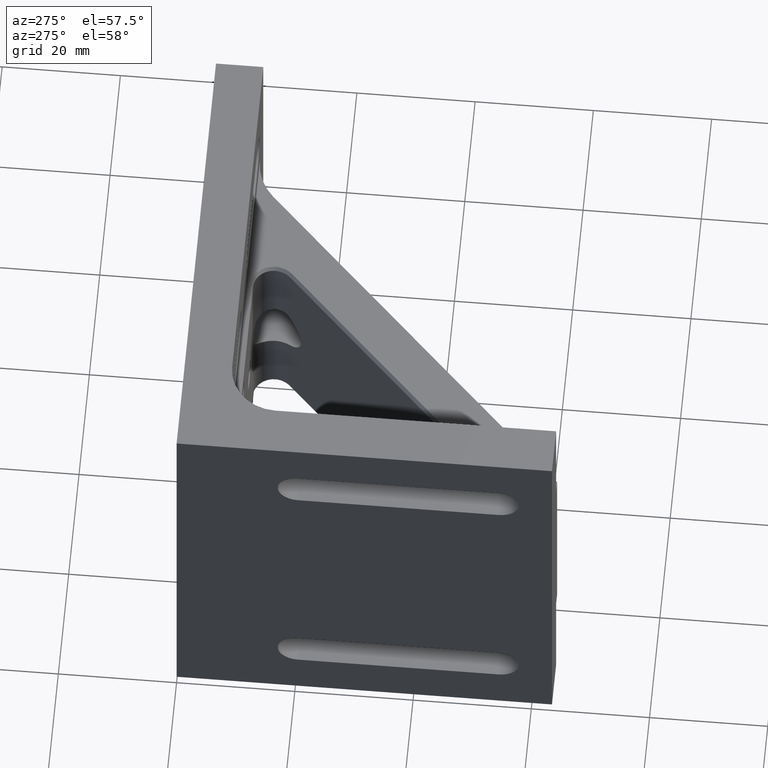
[diagram: clean part render]
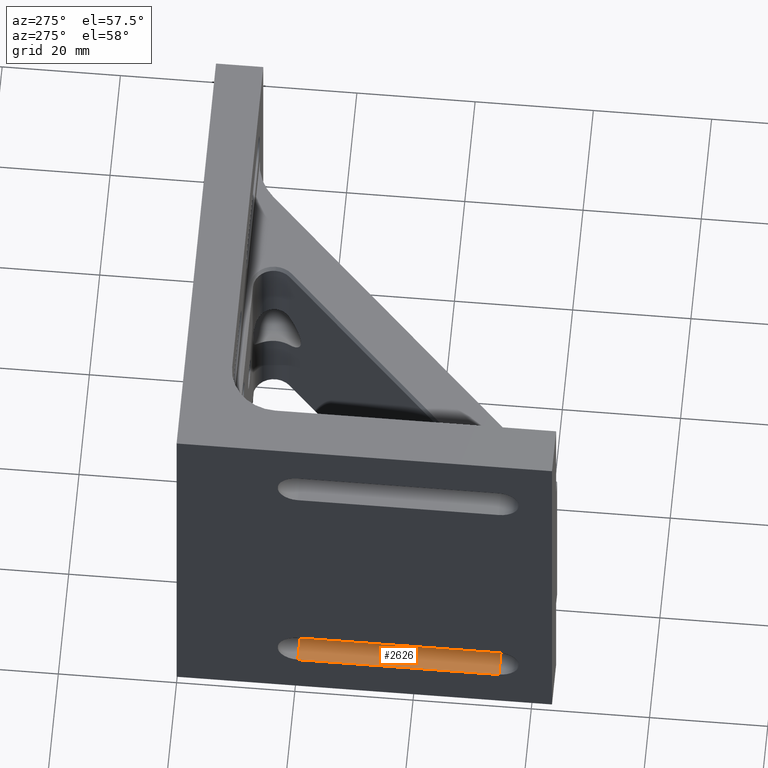
[diagram: same view with one face highlighted and labeled with its STEP entity id]
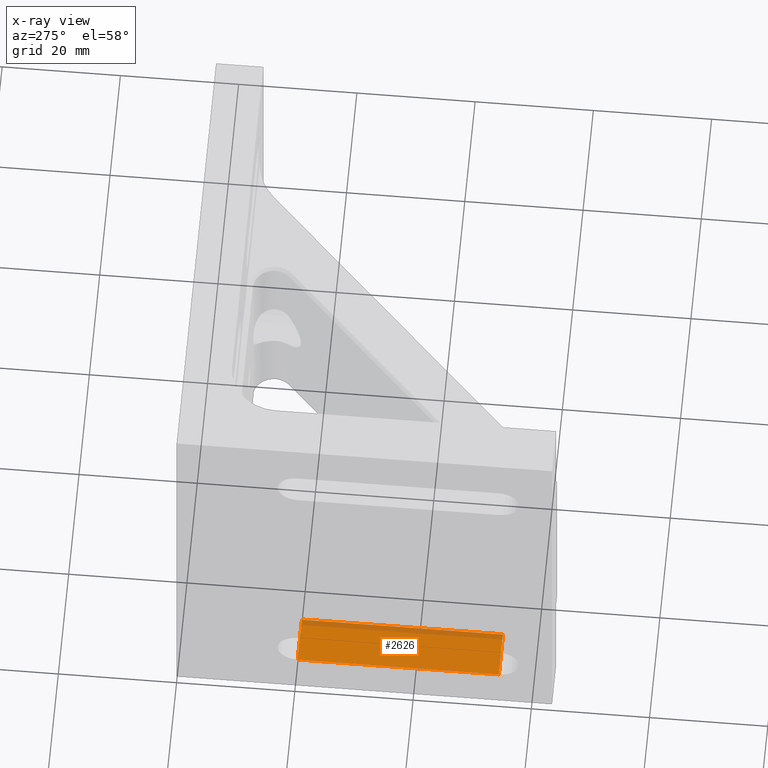
[diagram: x-ray of the same camera — body ghosted, the highlighted face saturated]
A machine part, auxiliary view. The second image highlights one B-rep face of the part: STEP entity #2626.
The next image is the same camera in x-ray: the body ghosted, the highlighted face saturated — about 13% of this face is hidden behind the body in this view.
In plain terms, the highlighted planar face has unit normal (0, -0, -1).
Its self-contained STEP definition (entity closure, byte-faithful):
#104 = LINE ( 'NONE', #2837, #2704 ) ;
#198 = DIRECTION ( 'NONE',  ( -2.500502307714317123E-16, 1.000000000000000000, -2.040851148208008245E-16 ) ) ;
#467 = LINE ( 'NONE', #1388, #1306 ) ;
#487 = EDGE_CURVE ( 'NONE', #1509, #2276, #595, .T. ) ;
#555 = DIRECTION ( 'NONE',  ( 2.499321826189137217E-32, -2.040851148208008245E-16, -1.000000000000000000 ) ) ;
#595 = LINE ( 'NONE', #2517, #2120 ) ;
#858 = DIRECTION ( 'NONE',  ( 0.000000000000000000, 1.000000000000000000, -2.040851148208008245E-16 ) ) ;
#1024 = DIRECTION ( 'NONE',  ( -1.000000000000000000, -1.224646799147352961E-16, -0.000000000000000000 ) ) ;
#1200 = AXIS2_PLACEMENT_3D ( 'NONE', #1370, #555, #858 ) ;
#1280 = VECTOR ( 'NONE', #1862, 1000.000000000000000 ) ;
#1306 = VECTOR ( 'NONE', #198, 1000.000000000000000 ) ;
#1370 = CARTESIAN_POINT ( 'NONE',  ( 76.20100000000000762, -20.50000000000001421, -28.39999999999999858 ) ) ;
#1388 = CARTESIAN_POINT ( 'NONE',  ( 7.999999999999992895, -20.50000000000003197, -28.39999999999999858 ) ) ;
#1509 = VERTEX_POINT ( 'NONE', #3116 ) ;
#1525 = ORIENTED_EDGE ( 'NONE', *, *, #2216, .T. ) ;
#1862 = DIRECTION ( 'NONE',  ( 1.224646799147353207E-16, -1.000000000000000000, 2.040851148208008245E-16 ) ) ;
#1923 = CARTESIAN_POINT ( 'NONE',  ( 2.510525938252076454E-15, -20.50000000000002487, -28.39999999999999858 ) ) ;
#1925 = ORIENTED_EDGE ( 'NONE', *, *, #2022, .F. ) ;
#1982 = VERTEX_POINT ( 'NONE', #2821 ) ;
#2022 = EDGE_CURVE ( 'NONE', #3118, #1982, #104, .T. ) ;
#2120 = VECTOR ( 'NONE', #1024, 1000.000000000000000 ) ;
#2153 = LINE ( 'NONE', #1923, #1280 ) ;
#2216 = EDGE_CURVE ( 'NONE', #2276, #1982, #2153, .T. ) ;
#2263 = CARTESIAN_POINT ( 'NONE',  ( 2.510525938252076059E-15, -20.50000000000002132, -28.39999999999999147 ) ) ;
#2276 = VERTEX_POINT ( 'NONE', #2263 ) ;
#2307 = DIRECTION ( 'NONE',  ( -1.000000000000000000, -1.224646799147352961E-16, -0.000000000000000000 ) ) ;
#2514 = FACE_OUTER_BOUND ( 'NONE', #2873, .T. ) ;
#2517 = CARTESIAN_POINT ( 'NONE',  ( 76.20100000000000762, -20.50000000000001421, -28.39999999999999858 ) ) ;
#2564 = PLANE ( 'NONE',  #1200 ) ;
#2567 = EDGE_CURVE ( 'NONE', #3118, #1509, #467, .T. ) ;
#2626 = ADVANCED_FACE ( 'NONE', ( #2514 ), #2564, .F. ) ;
#2704 = VECTOR ( 'NONE', #2307, 1000.000000000000000 ) ;
#2785 = CARTESIAN_POINT ( 'NONE',  ( 8.000000000000005329, -54.50000000000002842, -28.39999999999998437 ) ) ;
#2821 = CARTESIAN_POINT ( 'NONE',  ( 6.674325055353077407E-15, -54.50000000000002842, -28.39999999999999503 ) ) ;
#2830 = ORIENTED_EDGE ( 'NONE', *, *, #487, .T. ) ;
#2837 = CARTESIAN_POINT ( 'NONE',  ( 76.20100000000000762, -54.50000000000002132, -28.39999999999999503 ) ) ;
#2873 = EDGE_LOOP ( 'NONE', ( #3082, #2830, #1525, #1925 ) ) ;
#3082 = ORIENTED_EDGE ( 'NONE', *, *, #2567, .T. ) ;
#3116 = CARTESIAN_POINT ( 'NONE',  ( 7.999999999999992895, -20.50000000000001421, -28.39999999999999858 ) ) ;
#3118 = VERTEX_POINT ( 'NONE', #2785 ) ;